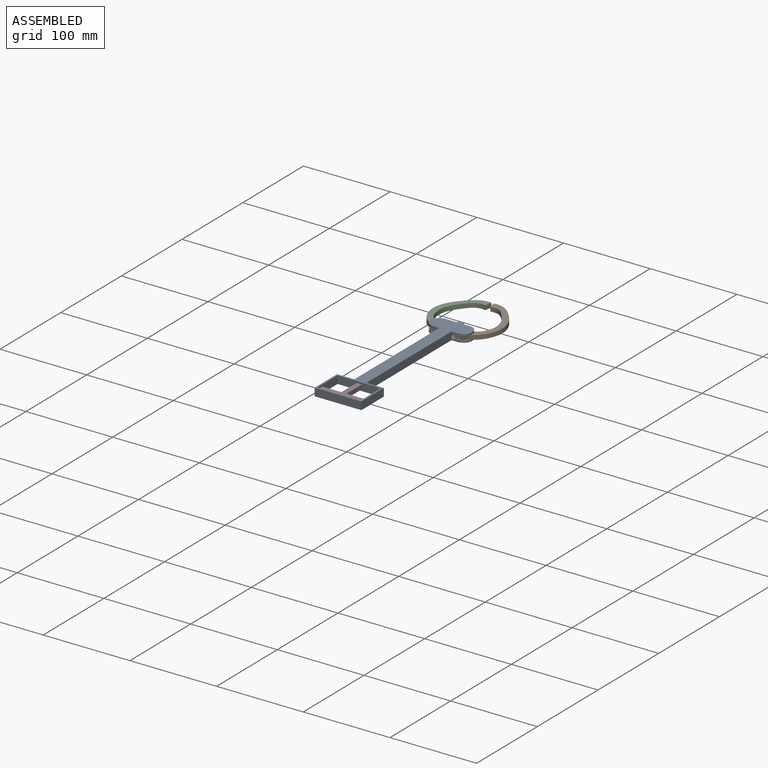
[diagram: assembled view]
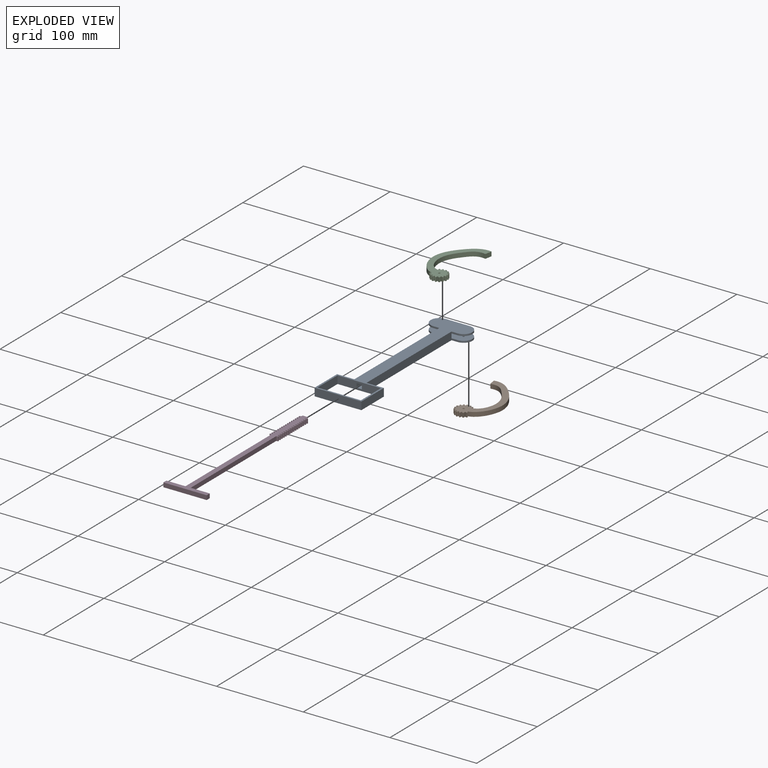
[diagram: exploded view]
GUIDED TOUR — MATED ASSEMBLY (Onshape document 0cc32c694f16acee39b3faa4, AutoMate assembly 0cc32c694f16acee39b3faa4_d5aed73cb2bc68d22b944822_4c9d16e982062add1113d458_default)

This assembly has 4 components, labeled P0..P3 below (a component is one placed occurrence of a part; the same part can appear more than once), held together by 3 mates. A mate is a constraint between two components; its type names the relative motion it leaves free:
  REVOLUTE — leaves rotation about the listed axis free (a hinge),
  SLIDER — leaves translation along the listed axis free.
Axis/direction vectors are unit vectors and 'through' points are millimeter coordinates, both in the assembly's world frame.

MATES
  1. SLIDER "Slider 1": P3 <-> P0, axis (0.000, -1.000, 0.000) through (-67.76, -161.87, -34.13) mm
  2. REVOLUTE "Revolute 1": P1 <-> P0, axis (0.000, 0.000, 1.000) through (-53.76, 26.63, -31.63) mm
  3. REVOLUTE "Revolute 2": P2 <-> P0, axis (0.000, 0.000, -1.000) through (-81.76, 26.63, -31.63) mm

ASSEMBLY ORDER
  1. P0 — the base component [order heuristic]
  2. P1 — core [order heuristic]
  3. P3 — core [order heuristic]
  4. P2 [order verified]
Order-tag legend:
  [order verified] — this step's position reverses a verified removal order: the component was checked to insert without passing through the ones already placed.
  [order heuristic] — the first 3 components form the assembly's core: parts whose collision-free extraction could not be verified, listed in mate-graph order.

Of the 4 components, 2 carry the full construction recipe — the FeatureScript program that regenerates the part's solid from scratch; the rest are supplied as boundary geometry only.
Each toured component is shown spotlighted twice — in the assembled view, then in the exploded view, where a leader line traces a displaced component back to its assembled socket (saturated green if recipe-attached, orange if geometry-only; every other component desaturated gray) — followed by its recipe or geometry summary and the mates that hold it.
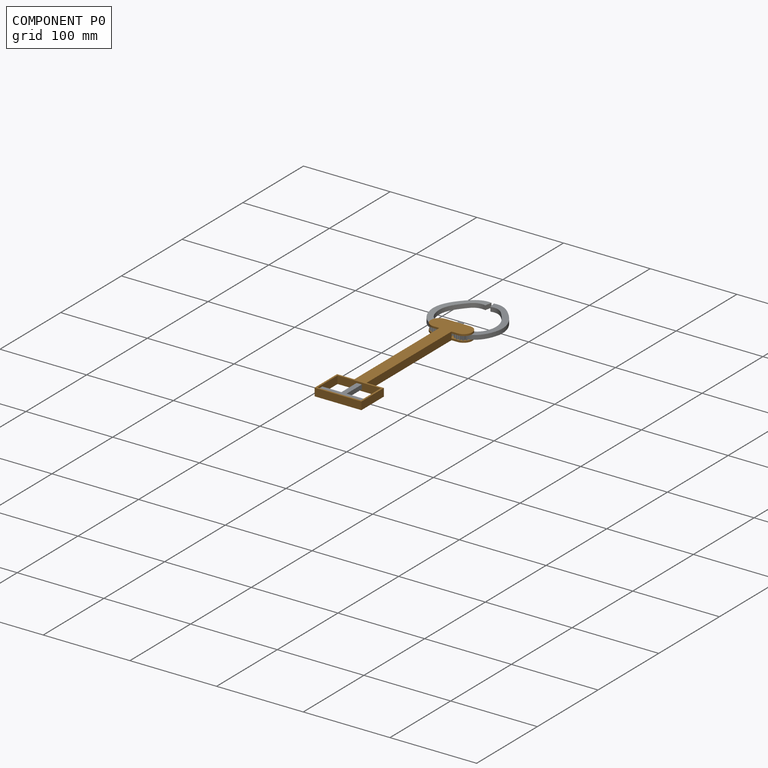
[diagram: component P0 — assembled]
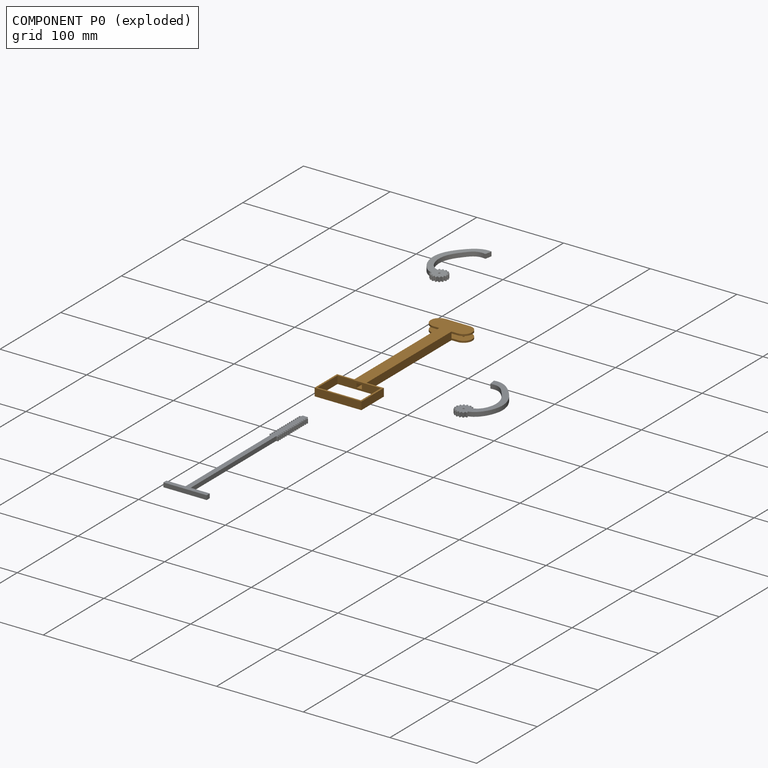
[diagram: component P0 — exploded]
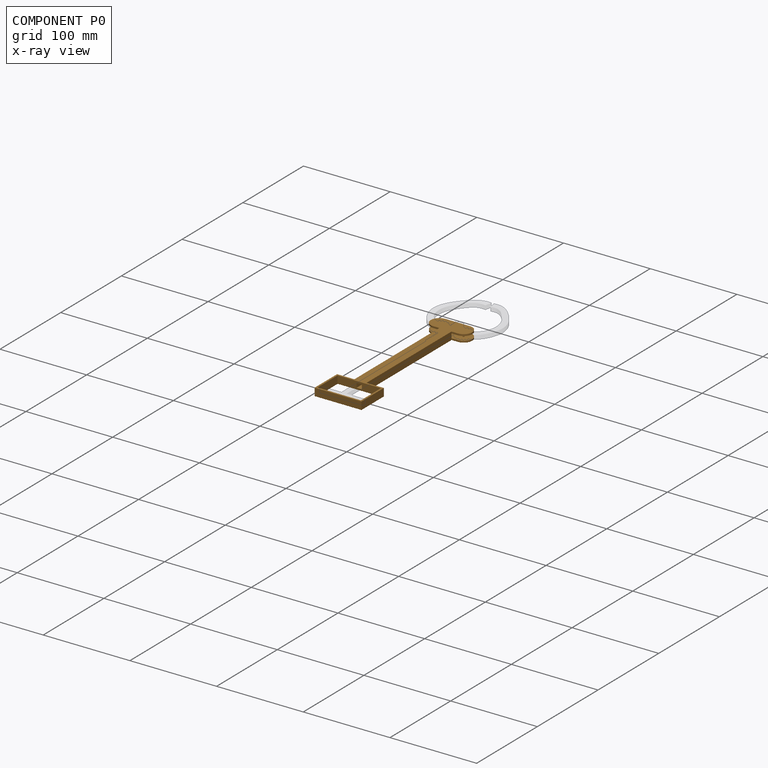
[diagram: component P0 — x-ray view]
COMPONENT P0 — geometry summary (no construction recipe available for this part):
  bounding box: 197.0 x 54.0 x 9.0 mm
  B-rep topology: 1 solid, 35 faces, 196 edges
  volume: 19040 mm^3 (20% of its bounding box)
  symmetry: 2-fold rotationally symmetric about the y axis; mirror-symmetric across its x mid-plane, z mid-plane
Held by: SLIDER mate "Slider 1" to P3; REVOLUTE mate "Revolute 1" to P1; REVOLUTE mate "Revolute 2" to P2.
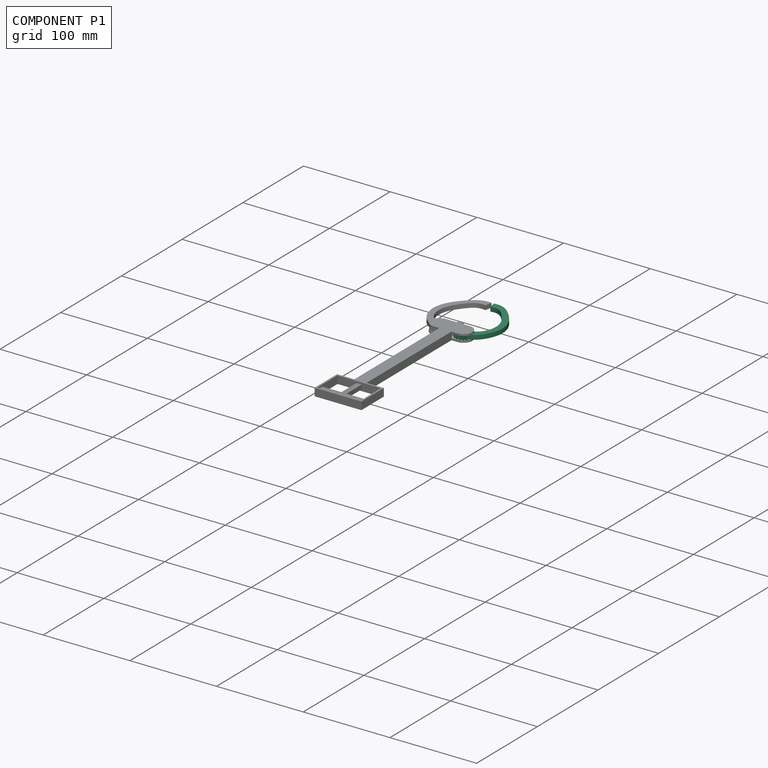
[diagram: component P1 — assembled]
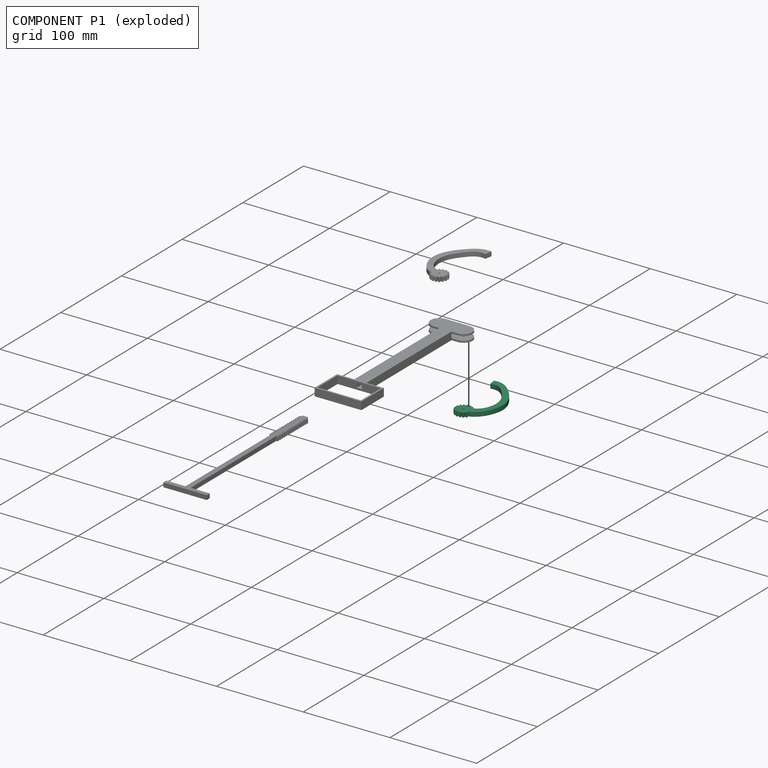
[diagram: component P1 — exploded]
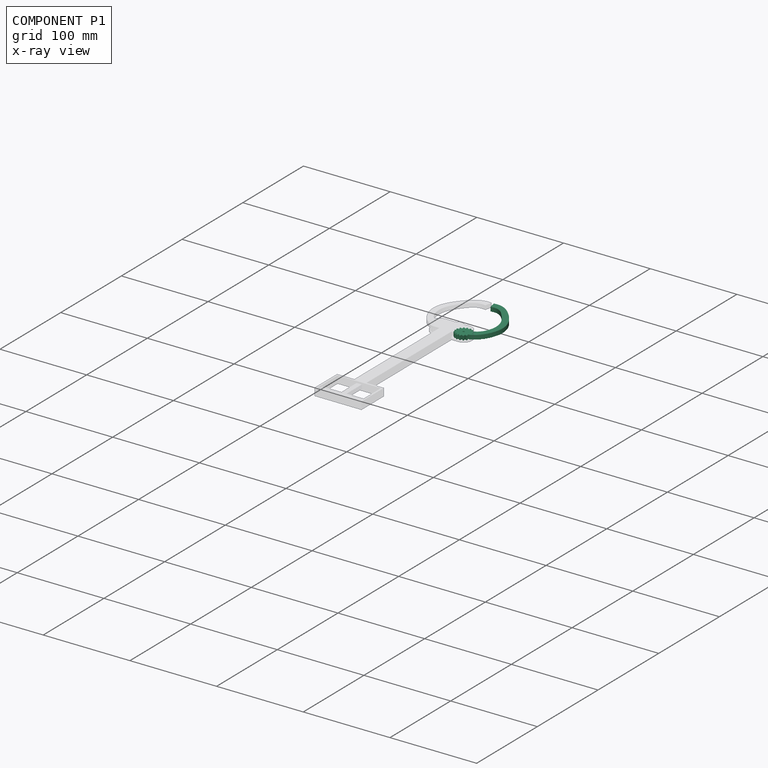
[diagram: component P1 — x-ray view]
COMPONENT P1 — recipe-attached (CADFS 00182907, mesh-verified: the recipe's output STEP matches this component's geometry to below the mesh-comparison resolution (tessellation chordal tolerance ~0.133 mm)).
Held by: REVOLUTE mate "Revolute 1" to P0.
Construction recipe (FeatureScript — the CAD program that rebuilds this solid; sketch coordinates are in the units given by the * unit suffixes, e.g. mm):

FeatureScript 1511;
import(path : "onshape/std/geometry.fs", version : "1511.0");
import(path : "onshape/std/common.fs", version : "1511.0");
const mm = millimeter;
const VERTEX = EntityType.VERTEX;
const EDGE = EntityType.EDGE;
const FACE = EntityType.FACE;
const BODY = EntityType.BODY;
function v(x, y){return vector(x, y);}
function OD(order){return orderDisambiguation(order);}
function OSD(set){return originalSetDisambiguation(set);}
function TD(topology){return topologyDisambiguation(topology);}
function TDD(query){return trueDependencyDisambiguation(query);}
function sQuery(a, b, c) {return sketchEntityQuery(a, b, c);}

annotation { "Feature Type Name" : "Feature", "Feature Type Description" : "" }
export const myFeature = defineFeature(function(context is Context, id is Id, definition is map)
    precondition{}
    {
        {
            var Q0;
            Q0=qCreatedBy(makeId("Top.planeOp"),FACE);
            var sketch = newSketch(context, id + "F0", { "sketchPlane" : qUnion([Q0])});
            skCircle(sketch, "E0", {"center": v(0, 0) * mm, "radius": 7.5 * mm});
            skLineSegment(sketch, "E1", {"start": v(0, 0) * mm, "end": v(0, 7.5) * mm, "construction": true});
            skLineSegment(sketch, "E2", {"start": v(0, 7.5) * mm, "end": v(0, 9.5) * mm, "construction": true});
            skLineSegment(sketch, "E3", {"start": v(0, 9.5) * mm, "end": v(-0.5, 9.5) * mm});
            skArc(sketch, "E4", {"start": v(-0.5, 9.5) * mm, "mid": v(-0.95, 8.5) * mm, "end": v(-1.09, 7.42) * mm});
            skLineSegment(sketch, "E5.MirrorCS", {"start": v(0, 9.5) * mm, "end": v(0.5, 9.5) * mm});
            skArc(sketch, "E6.MirrorCS", {"start": v(0.5, 9.5) * mm, "mid": v(0.95, 8.5) * mm, "end": v(1.09, 7.42) * mm});
            skArc(sketch, "E7.1.0", {"start": v(-4.1, 8.59) * mm, "mid": v(-4.13, 7.5) * mm, "end": v(-3.85, 6.44) * mm});
            skLineSegment(sketch, "E7.1.1", {"start": v(-3.64, 8.78) * mm, "end": v(-4.1, 8.59) * mm});
            skLineSegment(sketch, "E7.1.2", {"start": v(-3.64, 8.78) * mm, "end": v(-3.17, 8.97) * mm});
            skArc(sketch, "E7.1.3", {"start": v(-3.17, 8.97) * mm, "mid": v(-2.38, 8.22) * mm, "end": v(-1.83, 7.27) * mm});
            skArc(sketch, "E7.2.0", {"start": v(-7.07, 6.36) * mm, "mid": v(-6.69, 5.34) * mm, "end": v(-6.02, 4.48) * mm});
            skLineSegment(sketch, "E7.2.1", {"start": v(-6.72, 6.72) * mm, "end": v(-7.07, 6.36) * mm});
            skLineSegment(sketch, "E7.2.2", {"start": v(-6.72, 6.72) * mm, "end": v(-6.36, 7.07) * mm});
            skArc(sketch, "E7.2.3", {"start": v(-6.36, 7.07) * mm, "mid": v(-5.34, 6.69) * mm, "end": v(-4.48, 6.02) * mm});
            skArc(sketch, "E7.3.0", {"start": v(-8.97, 3.17) * mm, "mid": v(-8.22, 2.38) * mm, "end": v(-7.27, 1.83) * mm});
            skLineSegment(sketch, "E7.3.1", {"start": v(-8.78, 3.64) * mm, "end": v(-8.97, 3.17) * mm});
            skLineSegment(sketch, "E7.3.2", {"start": v(-8.78, 3.64) * mm, "end": v(-8.59, 4.1) * mm});
            skArc(sketch, "E7.3.3", {"start": v(-8.59, 4.1) * mm, "mid": v(-7.5, 4.13) * mm, "end": v(-6.44, 3.85) * mm});
            skArc(sketch, "E7.4.0", {"start": v(-9.5, -0.5) * mm, "mid": v(-8.5, -0.95) * mm, "end": v(-7.42, -1.09) * mm});
            skLineSegment(sketch, "E7.4.1", {"start": v(-9.5, 0) * mm, "end": v(-9.5, -0.5) * mm});
            skLineSegment(sketch, "E7.4.2", {"start": v(-9.5, 0) * mm, "end": v(-9.5, 0.5) * mm});
            skArc(sketch, "E7.4.3", {"start": v(-9.5, 0.5) * mm, "mid": v(-8.5, 0.95) * mm, "end": v(-7.42, 1.09) * mm});
            skArc(sketch, "E7.5.0", {"start": v(-8.59, -4.1) * mm, "mid": v(-7.5, -4.13) * mm, "end": v(-6.44, -3.85) * mm});
            skLineSegment(sketch, "E7.5.1", {"start": v(-8.78, -3.64) * mm, "end": v(-8.59, -4.1) * mm});
            skLineSegment(sketch, "E7.5.2", {"start": v(-8.78, -3.64) * mm, "end": v(-8.97, -3.17) * mm});
            skArc(sketch, "E7.5.3", {"start": v(-8.97, -3.17) * mm, "mid": v(-8.22, -2.38) * mm, "end": v(-7.27, -1.83) * mm});
            skArc(sketch, "E7.6.0", {"start": v(-6.36, -7.07) * mm, "mid": v(-5.34, -6.69) * mm, "end": v(-4.48, -6.02) * mm});
            skLineSegment(sketch, "E7.6.1", {"start": v(-6.72, -6.72) * mm, "end": v(-6.36, -7.07) * mm});
            skLineSegment(sketch, "E7.6.2", {"start": v(-6.72, -6.72) * mm, "end": v(-7.07, -6.36) * mm});
            skArc(sketch, "E7.6.3", {"start": v(-7.07, -6.36) * mm, "mid": v(-6.69, -5.34) * mm, "end": v(-6.02, -4.48) * mm});
            skArc(sketch, "E7.7.0", {"start": v(-3.17, -8.97) * mm, "mid": v(-2.38, -8.22) * mm, "end": v(-1.83, -7.27) * mm});
            skLineSegment(sketch, "E7.7.1", {"start": v(-3.64, -8.78) * mm, "end": v(-3.17, -8.97) * mm});
            skLineSegment(sketch, "E7.7.2", {"start": v(-3.64, -8.78) * mm, "end": v(-4.1, -8.59) * mm});
            skArc(sketch, "E7.7.3", {"start": v(-4.1, -8.59) * mm, "mid": v(-4.13, -7.5) * mm, "end": v(-3.85, -6.44) * mm});
            skArc(sketch, "E7.8.0", {"start": v(0.5, -9.5) * mm, "mid": v(0.95, -8.5) * mm, "end": v(1.09, -7.42) * mm});
            skLineSegment(sketch, "E7.8.1", {"start": v(0, -9.5) * mm, "end": v(0.5, -9.5) * mm});
            skLineSegment(sketch, "E7.8.2", {"start": v(0, -9.5) * mm, "end": v(-0.5, -9.5) * mm});
            skArc(sketch, "E7.8.3", {"start": v(-0.5, -9.5) * mm, "mid": v(-0.95, -8.5) * mm, "end": v(-1.09, -7.42) * mm});
            skArc(sketch, "E7.9.0", {"start": v(4.1, -8.59) * mm, "mid": v(4.13, -7.5) * mm, "end": v(3.85, -6.44) * mm});
            skLineSegment(sketch, "E7.9.1", {"start": v(3.64, -8.78) * mm, "end": v(4.1, -8.59) * mm});
            skLineSegment(sketch, "E7.9.2", {"start": v(3.64, -8.78) * mm, "end": v(3.17, -8.97) * mm});
            skArc(sketch, "E7.9.3", {"start": v(3.17, -8.97) * mm, "mid": v(2.38, -8.22) * mm, "end": v(1.83, -7.27) * mm});
            skArc(sketch, "E7.10.0", {"start": v(7.07, -6.36) * mm, "mid": v(6.69, -5.34) * mm, "end": v(6.02, -4.48) * mm});
            skLineSegment(sketch, "E7.10.1", {"start": v(6.72, -6.72) * mm, "end": v(7.07, -6.36) * mm});
            skLineSegment(sketch, "E7.10.2", {"start": v(6.72, -6.72) * mm, "end": v(6.36, -7.07) * mm});
            skArc(sketch, "E7.10.3", {"start": v(6.36, -7.07) * mm, "mid": v(5.34, -6.69) * mm, "end": v(4.48, -6.02) * mm});
            skArc(sketch, "E7.11.0", {"start": v(8.97, -3.17) * mm, "mid": v(8.22, -2.38) * mm, "end": v(7.27, -1.83) * mm});
            skLineSegment(sketch, "E7.11.1", {"start": v(8.78, -3.64) * mm, "end": v(8.97, -3.17) * mm});
            skLineSegment(sketch, "E7.11.2", {"start": v(8.78, -3.64) * mm, "end": v(8.59, -4.1) * mm});
            skArc(sketch, "E7.11.3", {"start": v(8.59, -4.1) * mm, "mid": v(7.5, -4.13) * mm, "end": v(6.44, -3.85) * mm});
            skArc(sketch, "E7.12.0", {"start": v(9.5, 0.5) * mm, "mid": v(8.5, 0.95) * mm, "end": v(7.42, 1.09) * mm});
            skLineSegment(sketch, "E7.12.1", {"start": v(9.5, 0) * mm, "end": v(9.5, 0.5) * mm});
            skLineSegment(sketch, "E7.12.2", {"start": v(9.5, 0) * mm, "end": v(9.5, -0.5) * mm});
            skArc(sketch, "E7.12.3", {"start": v(9.5, -0.5) * mm, "mid": v(8.5, -0.95) * mm, "end": v(7.42, -1.09) * mm});
            skArc(sketch, "E7.13.0", {"start": v(8.59, 4.1) * mm, "mid": v(7.5, 4.13) * mm, "end": v(6.44, 3.85) * mm});
            skLineSegment(sketch, "E7.13.1", {"start": v(8.78, 3.64) * mm, "end": v(8.59, 4.1) * mm});
            skLineSegment(sketch, "E7.13.2", {"start": v(8.78, 3.64) * mm, "end": v(8.97, 3.17) * mm});
            skArc(sketch, "E7.13.3", {"start": v(8.97, 3.17) * mm, "mid": v(8.22, 2.38) * mm, "end": v(7.27, 1.83) * mm});
            skArc(sketch, "E7.14.0", {"start": v(6.36, 7.07) * mm, "mid": v(5.34, 6.69) * mm, "end": v(4.48, 6.02) * mm});
            skLineSegment(sketch, "E7.14.1", {"start": v(6.72, 6.72) * mm, "end": v(6.36, 7.07) * mm});
            skLineSegment(sketch, "E7.14.2", {"start": v(6.72, 6.72) * mm, "end": v(7.07, 6.36) * mm});
            skArc(sketch, "E7.14.3", {"start": v(7.07, 6.36) * mm, "mid": v(6.69, 5.34) * mm, "end": v(6.02, 4.48) * mm});
            skArc(sketch, "E7.15.0", {"start": v(3.17, 8.97) * mm, "mid": v(2.38, 8.22) * mm, "end": v(1.83, 7.27) * mm});
            skLineSegment(sketch, "E7.15.1", {"start": v(3.64, 8.78) * mm, "end": v(3.17, 8.97) * mm});
            skLineSegment(sketch, "E7.15.2", {"start": v(3.64, 8.78) * mm, "end": v(4.1, 8.59) * mm});
            skArc(sketch, "E7.15.3", {"start": v(4.1, 8.59) * mm, "mid": v(4.13, 7.5) * mm, "end": v(3.85, 6.44) * mm});
            skSolve(sketch);
        }
        {
            var Q0;
            Q0=qSketchRegion(id+"F0",true);
            extrude(context, id + "F1", {"entities" : qUnion([Q0]), "depth" : 5 * mm});
        }
        {
            var Q0;
            Q0=makeQuery(id+"F1.opExtrude","CAP_FACE",FACE,{"disambiguationData":[OSD([sQuery(id+"F0.wireOp",EDGE,"E0"),sQuery(id+"F0.wireOp",EDGE,"E3"),sQuery(id+"F0.wireOp",EDGE,"E4"),sQuery(id+"F0.wireOp",EDGE,"E5.MirrorCS"),sQuery(id+"F0.wireOp",EDGE,"E6.MirrorCS"),sQuery(id+"F0.wireOp",EDGE,"E7.1.0"),sQuery(id+"F0.wireOp",EDGE,"E7.1.1"),sQuery(id+"F0.wireOp",EDGE,"E7.1.2"),sQuery(id+"F0.wireOp",EDGE,"E7.1.3"),sQuery(id+"F0.wireOp",EDGE,"E7.2.0"),sQuery(id+"F0.wireOp",EDGE,"E7.2.1"),sQuery(id+"F0.wireOp",EDGE,"E7.2.2"),sQuery(id+"F0.wireOp",EDGE,"E7.2.3"),sQuery(id+"F0.wireOp",EDGE,"E7.3.0"),sQuery(id+"F0.wireOp",EDGE,"E7.3.1"),sQuery(id+"F0.wireOp",EDGE,"E7.3.2"),sQuery(id+"F0.wireOp",EDGE,"E7.3.3"),sQuery(id+"F0.wireOp",EDGE,"E7.4.0"),sQuery(id+"F0.wireOp",EDGE,"E7.4.1"),sQuery(id+"F0.wireOp",EDGE,"E7.4.2"),sQuery(id+"F0.wireOp",EDGE,"E7.4.3"),sQuery(id+"F0.wireOp",EDGE,"E7.5.0"),sQuery(id+"F0.wireOp",EDGE,"E7.5.1"),sQuery(id+"F0.wireOp",EDGE,"E7.5.2"),sQuery(id+"F0.wireOp",EDGE,"E7.5.3"),sQuery(id+"F0.wireOp",EDGE,"E7.6.0"),sQuery(id+"F0.wireOp",EDGE,"E7.6.1"),sQuery(id+"F0.wireOp",EDGE,"E7.6.2"),sQuery(id+"F0.wireOp",EDGE,"E7.6.3"),sQuery(id+"F0.wireOp",EDGE,"E7.7.0"),sQuery(id+"F0.wireOp",EDGE,"E7.7.1"),sQuery(id+"F0.wireOp",EDGE,"E7.7.2"),sQuery(id+"F0.wireOp",EDGE,"E7.7.3"),sQuery(id+"F0.wireOp",EDGE,"E7.8.0"),sQuery(id+"F0.wireOp",EDGE,"E7.8.1"),sQuery(id+"F0.wireOp",EDGE,"E7.8.2"),sQuery(id+"F0.wireOp",EDGE,"E7.8.3"),sQuery(id+"F0.wireOp",EDGE,"E7.9.0"),sQuery(id+"F0.wireOp",EDGE,"E7.9.1"),sQuery(id+"F0.wireOp",EDGE,"E7.9.2"),sQuery(id+"F0.wireOp",EDGE,"E7.9.3"),sQuery(id+"F0.wireOp",EDGE,"E7.10.0"),sQuery(id+"F0.wireOp",EDGE,"E7.10.1"),sQuery(id+"F0.wireOp",EDGE,"E7.10.2"),sQuery(id+"F0.wireOp",EDGE,"E7.10.3"),sQuery(id+"F0.wireOp",EDGE,"E7.11.0"),sQuery(id+"F0.wireOp",EDGE,"E7.11.1"),sQuery(id+"F0.wireOp",EDGE,"E7.11.2"),sQuery(id+"F0.wireOp",EDGE,"E7.11.3"),sQuery(id+"F0.wireOp",EDGE,"E7.12.0"),sQuery(id+"F0.wireOp",EDGE,"E7.12.1"),sQuery(id+"F0.wireOp",EDGE,"E7.12.2"),sQuery(id+"F0.wireOp",EDGE,"E7.12.3"),sQuery(id+"F0.wireOp",EDGE,"E7.13.0"),sQuery(id+"F0.wireOp",EDGE,"E7.13.1"),sQuery(id+"F0.wireOp",EDGE,"E7.13.2"),sQuery(id+"F0.wireOp",EDGE,"E7.13.3"),sQuery(id+"F0.wireOp",EDGE,"E7.14.0"),sQuery(id+"F0.wireOp",EDGE,"E7.14.1"),sQuery(id+"F0.wireOp",EDGE,"E7.14.2"),sQuery(id+"F0.wireOp",EDGE,"E7.14.3"),sQuery(id+"F0.wireOp",EDGE,"E7.15.0"),sQuery(id+"F0.wireOp",EDGE,"E7.15.1"),sQuery(id+"F0.wireOp",EDGE,"E7.15.2"),sQuery(id+"F0.wireOp",EDGE,"E7.15.3")])],"isStart":false});
            var sketch = newSketch(context, id + "F2", { "sketchPlane" : qUnion([Q0])});
            skCircle(sketch, "E8", {"center": v(0, 0) * mm, "radius": 1 * mm});
            skSolve(sketch);
        }
        {
            var Q0;
            Q0=qSketchRegion(id+"F2",true);
            extrude(context, id + "F3", {"entities" : qUnion([Q0]), "operationType" : NewBodyOperationType.REMOVE, "endBound" : BoundingType.THROUGH_ALL, "oppositeDirection" : true, "depth" : 25 * mm});
        }
        {
            var Q0;
            Q0=qCreatedBy(makeId("Top.planeOp"),FACE);
            var sketch = newSketch(context, id + "F4", { "sketchPlane" : qUnion([Q0])});
            skLineSegment(sketch, "E9", {"start": v(0, 69) * mm, "end": v(0, 61) * mm});
            skFitSpline(sketch, "E10", {"points": [v(0, 61) * mm, v(16.92, 49.1) * mm, v(23.78, 24.9) * mm, v(6.24, 4.17) * mm], "startDerivative": vector(97.47, 0) * mm, "endDerivative": vector(-85.06, 0) * mm});
            skFitSpline(sketch, "E11", {"points": [v(0, 69) * mm, v(21.94, 53.74) * mm, v(30.22, 20.02) * mm, v(6.24, -4.17) * mm], "startDerivative": vector(98.06, 0) * mm, "endDerivative": vector(-86.86, 0) * mm});
            skLineSegment(sketch, "E12", {"start": v(6.24, 4.17) * mm, "end": v(6.24, -4.17) * mm});
            skSolve(sketch);
        }
        {
            var Q0;
            Q0 = qSketchRegion(id + "F4", true);
            var Q1;
            Q1=makeQuery(id+"F1.opExtrude","CAP_FACE",FACE,{"disambiguationData":[OSD([sQuery(id+"F0.wireOp",EDGE,"E0"),sQuery(id+"F0.wireOp",EDGE,"E3"),sQuery(id+"F0.wireOp",EDGE,"E4"),sQuery(id+"F0.wireOp",EDGE,"E5.MirrorCS"),sQuery(id+"F0.wireOp",EDGE,"E6.MirrorCS"),sQuery(id+"F0.wireOp",EDGE,"E7.1.0"),sQuery(id+"F0.wireOp",EDGE,"E7.1.1"),sQuery(id+"F0.wireOp",EDGE,"E7.1.2"),sQuery(id+"F0.wireOp",EDGE,"E7.1.3"),sQuery(id+"F0.wireOp",EDGE,"E7.2.0"),sQuery(id+"F0.wireOp",EDGE,"E7.2.1"),sQuery(id+"F0.wireOp",EDGE,"E7.2.2"),sQuery(id+"F0.wireOp",EDGE,"E7.2.3"),sQuery(id+"F0.wireOp",EDGE,"E7.3.0"),sQuery(id+"F0.wireOp",EDGE,"E7.3.1"),sQuery(id+"F0.wireOp",EDGE,"E7.3.2"),sQuery(id+"F0.wireOp",EDGE,"E7.3.3"),sQuery(id+"F0.wireOp",EDGE,"E7.4.0"),sQuery(id+"F0.wireOp",EDGE,"E7.4.1"),sQuery(id+"F0.wireOp",EDGE,"E7.4.2"),sQuery(id+"F0.wireOp",EDGE,"E7.4.3"),sQuery(id+"F0.wireOp",EDGE,"E7.5.0"),sQuery(id+"F0.wireOp",EDGE,"E7.5.1"),sQuery(id+"F0.wireOp",EDGE,"E7.5.2"),sQuery(id+"F0.wireOp",EDGE,"E7.5.3"),sQuery(id+"F0.wireOp",EDGE,"E7.6.0"),sQuery(id+"F0.wireOp",EDGE,"E7.6.1"),sQuery(id+"F0.wireOp",EDGE,"E7.6.2"),sQuery(id+"F0.wireOp",EDGE,"E7.6.3"),sQuery(id+"F0.wireOp",EDGE,"E7.7.0"),sQuery(id+"F0.wireOp",EDGE,"E7.7.1"),sQuery(id+"F0.wireOp",EDGE,"E7.7.2"),sQuery(id+"F0.wireOp",EDGE,"E7.7.3"),sQuery(id+"F0.wireOp",EDGE,"E7.8.0"),sQuery(id+"F0.wireOp",EDGE,"E7.8.1"),sQuery(id+"F0.wireOp",EDGE,"E7.8.2"),sQuery(id+"F0.wireOp",EDGE,"E7.8.3"),sQuery(id+"F0.wireOp",EDGE,"E7.9.0"),sQuery(id+"F0.wireOp",EDGE,"E7.9.1"),sQuery(id+"F0.wireOp",EDGE,"E7.9.2"),sQuery(id+"F0.wireOp",EDGE,"E7.9.3"),sQuery(id+"F0.wireOp",EDGE,"E7.10.0"),sQuery(id+"F0.wireOp",EDGE,"E7.10.1"),sQuery(id+"F0.wireOp",EDGE,"E7.10.2"),sQuery(id+"F0.wireOp",EDGE,"E7.10.3"),sQuery(id+"F0.wireOp",EDGE,"E7.11.0"),sQuery(id+"F0.wireOp",EDGE,"E7.11.1"),sQuery(id+"F0.wireOp",EDGE,"E7.11.2"),sQuery(id+"F0.wireOp",EDGE,"E7.11.3"),sQuery(id+"F0.wireOp",EDGE,"E7.12.0"),sQuery(id+"F0.wireOp",EDGE,"E7.12.1"),sQuery(id+"F0.wireOp",EDGE,"E7.12.2"),sQuery(id+"F0.wireOp",EDGE,"E7.12.3"),sQuery(id+"F0.wireOp",EDGE,"E7.13.0"),sQuery(id+"F0.wireOp",EDGE,"E7.13.1"),sQuery(id+"F0.wireOp",EDGE,"E7.13.2"),sQuery(id+"F0.wireOp",EDGE,"E7.13.3"),sQuery(id+"F0.wireOp",EDGE,"E7.14.0"),sQuery(id+"F0.wireOp",EDGE,"E7.14.1"),sQuery(id+"F0.wireOp",EDGE,"E7.14.2"),sQuery(id+"F0.wireOp",EDGE,"E7.14.3"),sQuery(id+"F0.wireOp",EDGE,"E7.15.0"),sQuery(id+"F0.wireOp",EDGE,"E7.15.1"),sQuery(id+"F0.wireOp",EDGE,"E7.15.2"),sQuery(id+"F0.wireOp",EDGE,"E7.15.3")])],"isStart":false});
            extrude(context, id + "F5", {"entities" : qUnion([Q0]), "operationType" : NewBodyOperationType.ADD, "endBound" : BoundingType.UP_TO_SURFACE, "endBoundEntityFace" : qUnion([Q1]), "depth" : 25 * mm});
        }
    });
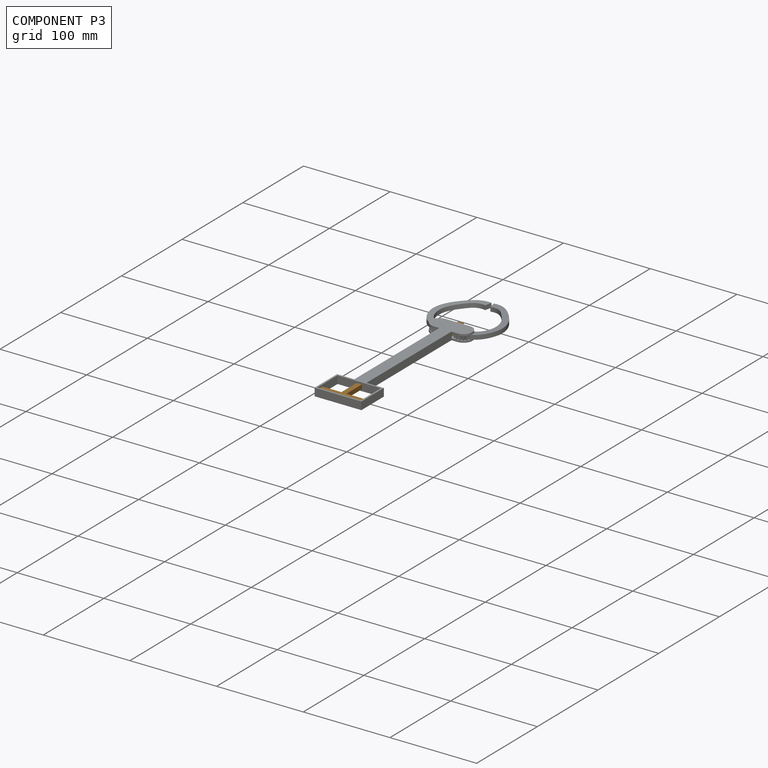
[diagram: component P3 — assembled]
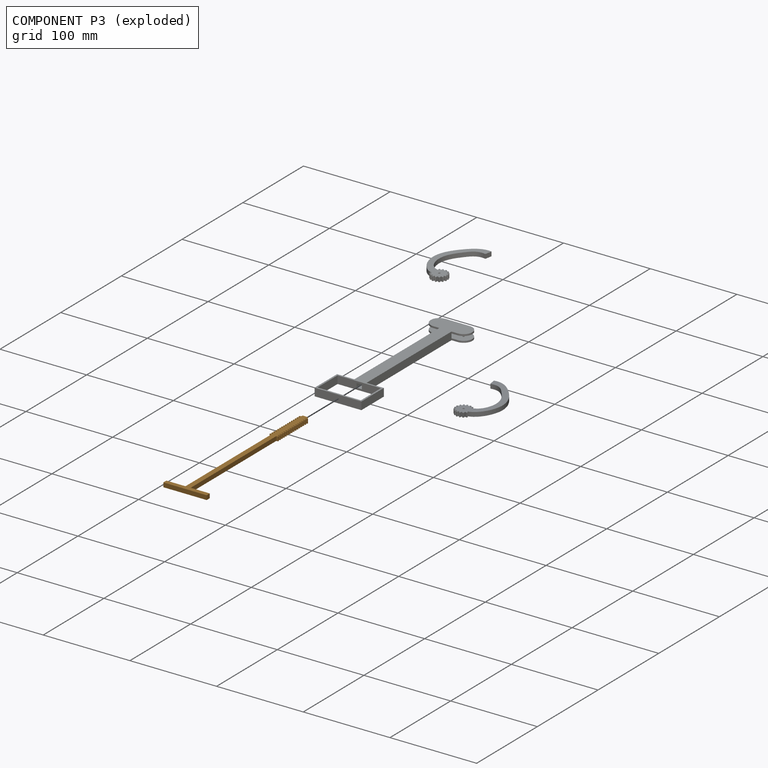
[diagram: component P3 — exploded]
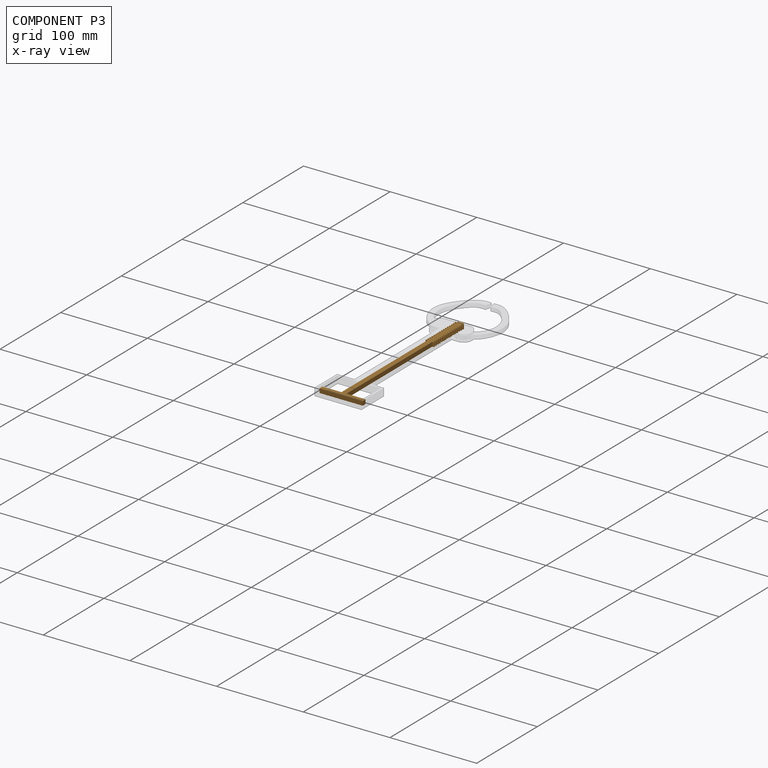
[diagram: component P3 — x-ray view]
COMPONENT P3 — geometry summary (no construction recipe available for this part):
  bounding box: 198.0 x 50.0 x 5.0 mm
  B-rep topology: 1 solid, 138 faces, 816 edges
  volume: 7615 mm^3 (15% of its bounding box)
  symmetry: 2-fold rotationally symmetric about the y axis; mirror-symmetric across its x mid-plane, z mid-plane
Held by: SLIDER mate "Slider 1" to P0.
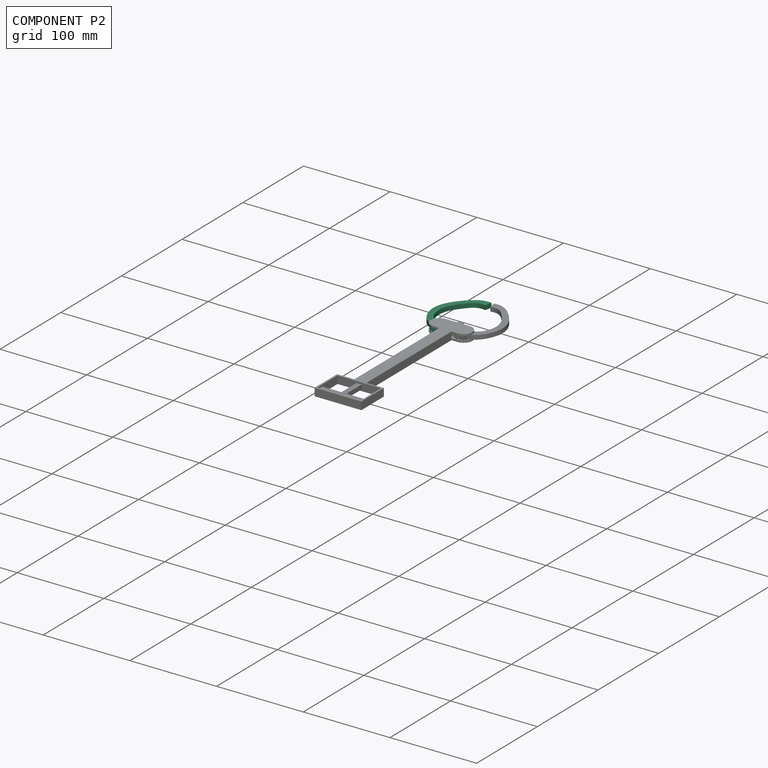
[diagram: component P2 — assembled]
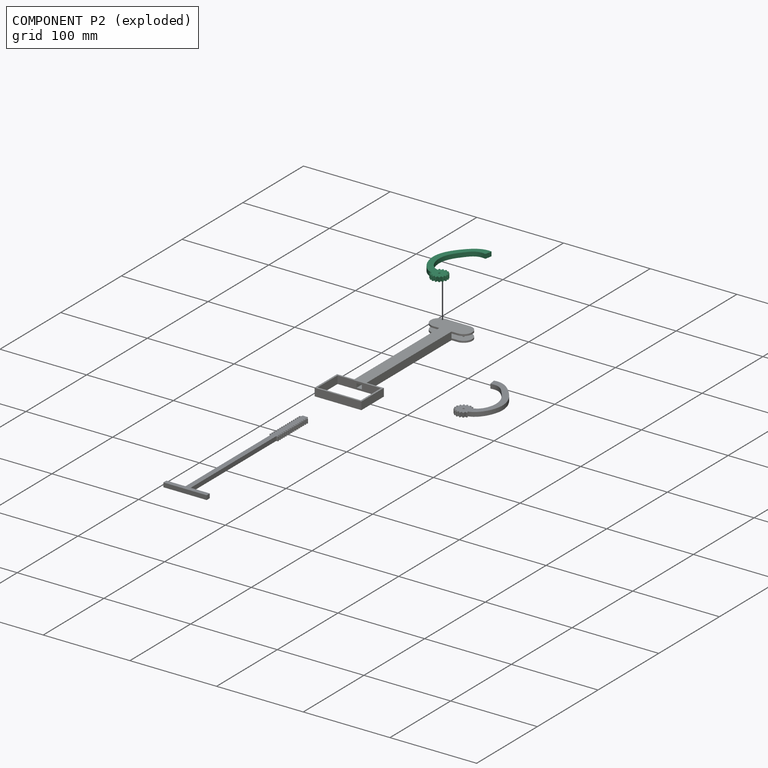
[diagram: component P2 — exploded]
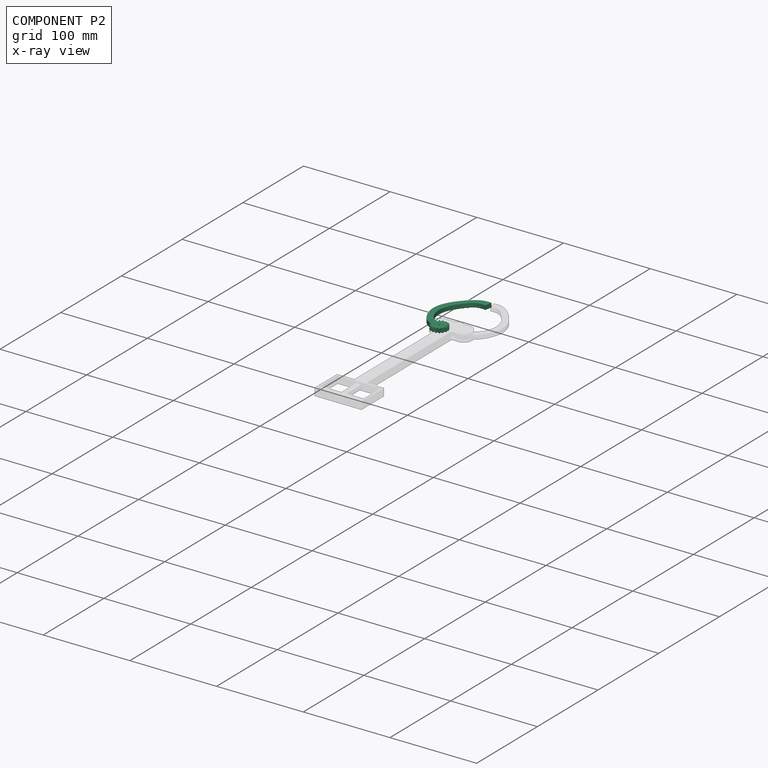
[diagram: component P2 — x-ray view]
COMPONENT P2 — same part as P1 (CADFS 00182907); its construction recipe is shown at P1.
Held by: REVOLUTE mate "Revolute 2" to P0.
PROVENANCE & LICENSES
Assembly (occurrences, transforms, mates, per-part STEP geometry): AutoMate dataset, Zenodo record 7776208, CC0.
Construction recipes: CADFS (HuggingFace VladPyatov/CADFS, CC-BY-4.0, layered over the ABC dataset), FeatureScript reconstruction programs keyed by ABC model id.
Join: ABC meta listings map ABC model id -> Onshape documentId; within a shared document, parts are matched by geometric signature (bounding-box dims + volume at 0.1% relative tolerance, exact B-rep face/solid counts).
Verification: 2 of this assembly's 4 components carry a recipe attachment, and every attachment is mesh-verified: the CADFS STEP and the AutoMate member STEP were compared as meshes in their shared local frame (symmetric sampled-point-to-mesh distance); worst across the 2 attachments: below the mesh-comparison resolution (tessellation chordal tolerance ~0.133 mm) on a 89 mm part.
Renders: orthographic iso camera (az 35 / el 25); the floor grid conveys scale (grid pitch printed in each image; no ruler). In the exploded view each component is displaced by its stored offset vector: the offsets alone carry the explosion direction (mate normal/axis signs are not orientation cues and do not encode it), and separation distances are assigned per mate-chain, not proportionally to assembly-order depth.
